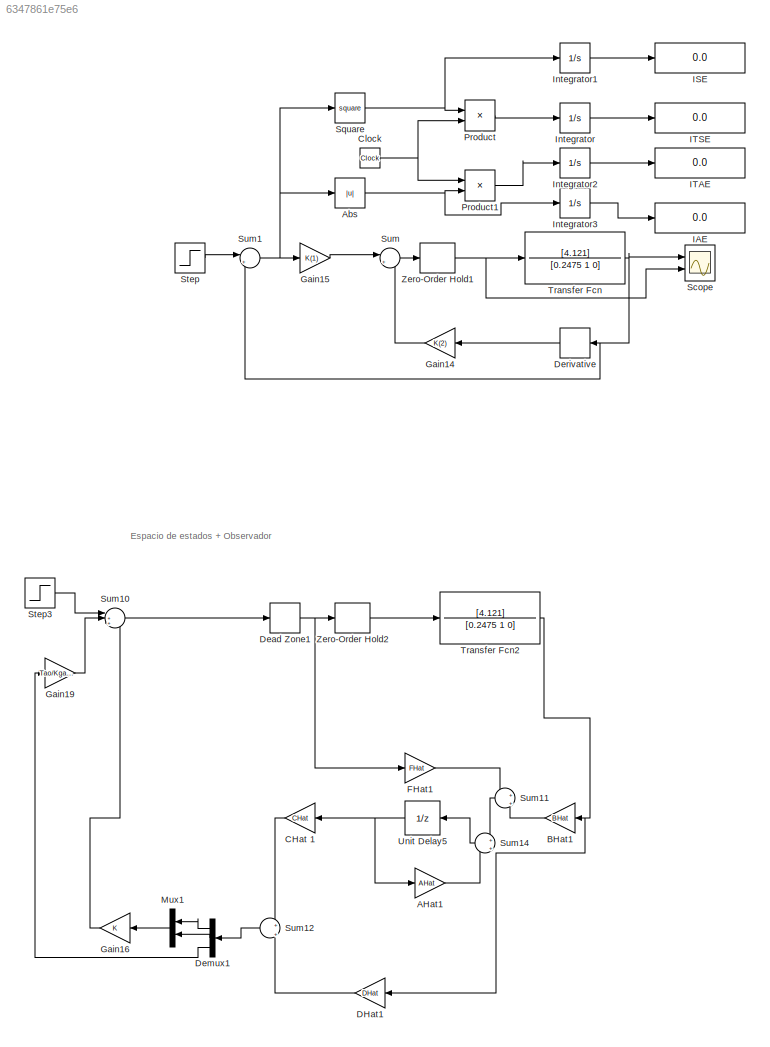
MODEL slx_6347861e75e6
KIND model
CONFIG AbsTol = auto
CONFIG EnableMultiTasking = off
CONFIG FixedStep = auto
CONFIG MaxStep = auto
CONFIG MinStep = auto
CONFIG RelTol = 1e-3
CONFIG SampleTimeConstraint = Unconstrained
CONFIG Solver = VariableStepAuto
CONFIG SolverName = VariableStepAuto
CONFIG StartTime = 0.0
CONFIG StopTime = 10.0
BLOCK [Gain] AHat1
  Gain = AHat
  Multiplication = Matrix(K*u)
  OutDataTypeStr = Inherit: Inherit via internal rule
  ParamDataTypeStr = Inherit: Inherit via internal rule
  SaturateOnIntegerOverflow = off
BLOCK [Abs] Abs
  SaturateOnIntegerOverflow = off
BLOCK [Gain] BHat1
  Gain = BHat
  Multiplication = Matrix(K*u)
  OutDataTypeStr = Inherit: Inherit via internal rule
  ParamDataTypeStr = Inherit: Inherit via internal rule
  SaturateOnIntegerOverflow = off
BLOCK [Gain] CHat 1
  Gain = CHat
  Multiplication = Matrix(K*u)
  OutDataTypeStr = Inherit: Inherit via internal rule
  ParamDataTypeStr = Inherit: Inherit via internal rule
  SaturateOnIntegerOverflow = off
BLOCK [Clock] Clock
BLOCK [Gain] DHat1
  Gain = DHat
  Multiplication = Matrix(K*u)
  OutDataTypeStr = Inherit: Inherit via internal rule
  ParamDataTypeStr = Inherit: Inherit via internal rule
  SaturateOnIntegerOverflow = off
BLOCK [DeadZone] Dead Zone1
  LowerValue = 0
  UpperValue = 0
BLOCK [Demux] Demux1
  DisplayOption = bar
  Outputs = 3
  Ports = [1, 3]
BLOCK [Derivative] Derivative
  CoefficientInTFapproximation = 100
BLOCK [Gain] FHat1
  Gain = FHat
  Multiplication = Matrix(K*u)
  OutDataTypeStr = Inherit: Inherit via internal rule
  ParamDataTypeStr = Inherit: Inherit via internal rule
  SaturateOnIntegerOverflow = off
BLOCK [Gain] Gain14
  Gain = K(2)
  OutDataTypeStr = Inherit: Inherit via internal rule
  ParamDataTypeStr = Inherit: Inherit via internal rule
  SaturateOnIntegerOverflow = off
BLOCK [Gain] Gain15
  Gain = K(1)
  OutDataTypeStr = Inherit: Inherit via internal rule
  ParamDataTypeStr = Inherit: Inherit via internal rule
  SaturateOnIntegerOverflow = off
BLOCK [Gain] Gain16
  Gain = K
  Multiplication = Matrix(K*u)
  OutDataTypeStr = Inherit: Inherit via internal rule
  ParamDataTypeStr = Inherit: Inherit via internal rule
  SaturateOnIntegerOverflow = off
BLOCK [Gain] Gain19
  Gain = Tao/Kgain
  OutDataTypeStr = Inherit: Inherit via internal rule
  ParamDataTypeStr = Inherit: Inherit via internal rule
  SaturateOnIntegerOverflow = off
BLOCK [Display] IAE
  Decimation = 1
  Ports = [1]
BLOCK [Display] ISE
  Decimation = 1
  Ports = [1]
BLOCK [Display] ITAE
  Decimation = 1
  Ports = [1]
BLOCK [Display] ITSE
  Decimation = 1
  Ports = [1]
BLOCK [Integrator] Integrator
  Ports = [1, 1]
BLOCK [Integrator] Integrator1
  Ports = [1, 1]
BLOCK [Integrator] Integrator2
  Ports = [1, 1]
BLOCK [Integrator] Integrator3
  Ports = [1, 1]
BLOCK [Mux] Mux1
  DisplayOption = bar
  Inputs = 2
  Ports = [2, 1]
BLOCK [Product] Product
  InputSameDT = off
  OutDataTypeStr = Inherit: Inherit via internal rule
  Ports = [2, 1]
  RndMeth = Floor
  SaturateOnIntegerOverflow = off
BLOCK [Product] Product1
  InputSameDT = off
  OutDataTypeStr = Inherit: Inherit via internal rule
  Ports = [2, 1]
  RndMeth = Floor
  SaturateOnIntegerOverflow = off
BLOCK [Scope] Scope
  Floating = off
  NumInputPorts = 2
  Ports = [2]
  ScopeSpecificationString = Simulink.scopes.TimeScopeBlockCfg('CurrentConfiguration', extmgr.ConfigurationSet(extmgr.Configuration('Core','General UI',true),extmgr.Configuration('Core','Source UI',true),extmgr.Configuration('Sources','WiredSimulink',true,'DataLoggingVariableName','ScopeData1'),extmgr.Configuration('Visuals','Time Domain',true,'SerializedDisplays',{struct('MinYLimReal','-5.54075','MaxYLimReal','5.19047','YLab...<+1463ch>
BLOCK [Math] Square
  Operator = square
  Ports = [1, 1]
BLOCK [Step] Step
  SampleTime = 0
  Time = 0
BLOCK [Step] Step3
  SampleTime = 0
  Time = 0
BLOCK [Sum] Sum
  IconShape = round
  InputSameDT = off
  Inputs = |+-
  OutDataTypeStr = Inherit: Inherit via internal rule
  Ports = [2, 1]
  SaturateOnIntegerOverflow = off
BLOCK [Sum] Sum1
  IconShape = round
  InputSameDT = off
  Inputs = |+-
  OutDataTypeStr = Inherit: Inherit via internal rule
  Ports = [2, 1]
  SaturateOnIntegerOverflow = off
BLOCK [Sum] Sum10
  IconShape = round
  InputSameDT = off
  Inputs = |++-
  OutDataTypeStr = Inherit: Inherit via internal rule
  Ports = [3, 1]
  SaturateOnIntegerOverflow = off
BLOCK [Sum] Sum11
  IconShape = round
  InputSameDT = off
  Inputs = +|+
  OutDataTypeStr = Inherit: Inherit via internal rule
  Ports = [2, 1]
  SaturateOnIntegerOverflow = off
BLOCK [Sum] Sum12
  IconShape = round
  InputSameDT = off
  Inputs = +||+
  OutDataTypeStr = Inherit: Inherit via internal rule
  Ports = [2, 1]
  SaturateOnIntegerOverflow = off
BLOCK [Sum] Sum14
  IconShape = round
  InputSameDT = off
  Inputs = +|+
  OutDataTypeStr = Inherit: Inherit via internal rule
  Ports = [2, 1]
  SaturateOnIntegerOverflow = off
BLOCK [TransferFcn] Transfer Fcn
  Denominator = [0.2475 1 0]
  Numerator = [4.121]
BLOCK [TransferFcn] Transfer Fcn2
  Denominator = [0.2475 1 0]
  Numerator = [4.121]
BLOCK [UnitDelay] Unit Delay5
  InitialCondition = [0,0]
  InputProcessing = Elements as channels (sample based)
  SampleTime = 0.005
BLOCK [ZeroOrderHold] Zero-Order Hold1
  SampleTime = 0.005
BLOCK [ZeroOrderHold] Zero-Order Hold2
  SampleTime = 0.005
ANNOTATION (root): Espacio de estados + Observador
LINE AHat1:1 -> Sum14:2
NET Abs:1 -> Integrator3:1, Product1:2
LINE BHat1:1 -> Sum11:2
LINE CHat 1:1 -> Sum12:1
NET Clock:1 -> Product1:1, Product:2
LINE DHat1:1 -> Sum12:2
NET Dead Zone1:1 -> FHat1:1, Zero-Order Hold2:1
LINE Demux1:1 -> Mux1:1
LINE Demux1:2 -> Mux1:2
LINE Demux1:3 -> Gain19:1
LINE Derivative:1 -> Gain14:1
LINE FHat1:1 -> Sum11:1
LINE Gain14:1 -> Sum:2
LINE Gain15:1 -> Sum:1
LINE Gain16:1 -> Sum10:3
LINE Gain19:1 -> Sum10:2
LINE Integrator1:1 -> ISE:1
LINE Integrator2:1 -> ITAE:1
LINE Integrator3:1 -> IAE:1
LINE Integrator:1 -> ITSE:1
LINE Mux1:1 -> Gain16:1
LINE Product1:1 -> Integrator2:1
LINE Product:1 -> Integrator:1
NET Square:1 -> Integrator1:1, Product:1
LINE Step3:1 -> Sum10:1
LINE Step:1 -> Sum1:1
LINE Sum10:1 -> Dead Zone1:1
LINE Sum11:1 -> Sum14:1
LINE Sum12:1 -> Demux1:1
LINE Sum14:1 -> Unit Delay5:1
NET Sum1:1 -> Abs:1, Gain15:1, Square:1
LINE Sum:1 -> Zero-Order Hold1:1
NET Transfer Fcn2:1 -> BHat1:1, DHat1:1
NET Transfer Fcn:1 -> Derivative:1, Scope:1, Sum1:2
NET Unit Delay5:1 -> AHat1:1, CHat 1:1
NET Zero-Order Hold1:1 -> Scope:2, Transfer Fcn:1
LINE Zero-Order Hold2:1 -> Transfer Fcn2:1
note: NET lines group one-source signal fan-out (src -> all destinations, sorted); 1:1 wires keep LINE
